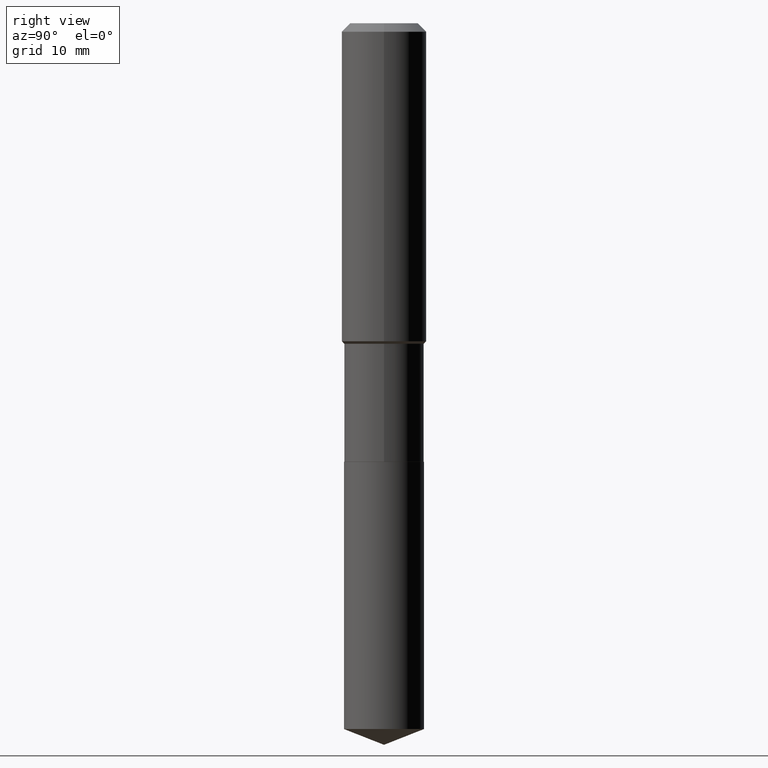
[diagram: clean part render]
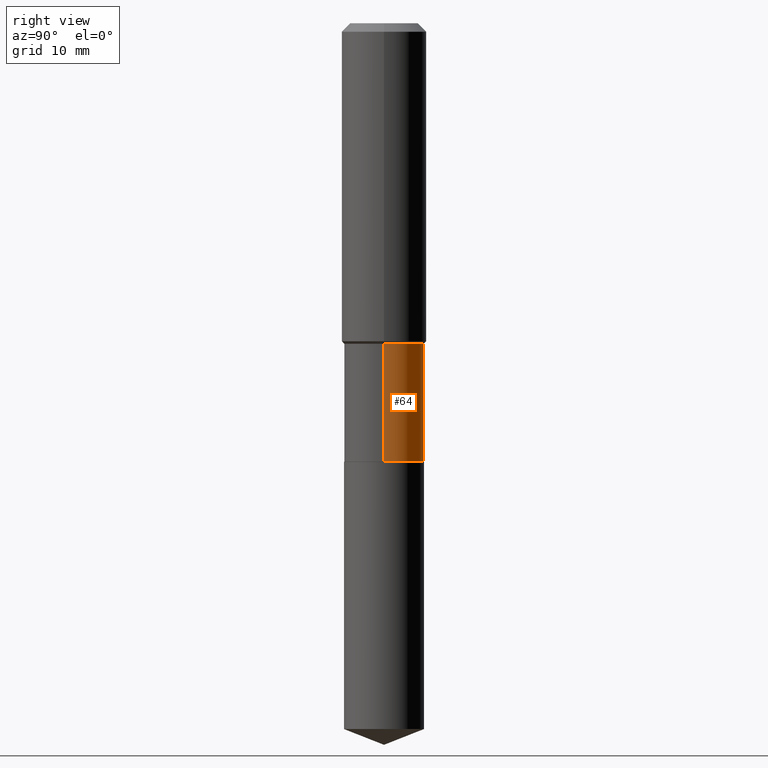
[diagram: same view with one face highlighted and labeled with its STEP entity id]
A machine part, right view. The second image highlights one B-rep face of the part: STEP entity #64.
In plain terms, the highlighted cylindrical surface (partial cylindrical patch) has radius 5.6502 mm, axis along (-0, 0, 1).
Its self-contained STEP definition (entity closure, byte-faithful):
#28 = VERTEX_POINT ( 'NONE', #339 ) ;
#32 = DIRECTION ( 'NONE',  ( 1.000000000000000000, -6.982962677686265922E-15, 0.000000000000000000 ) ) ;
#34 = ORIENTED_EDGE ( 'NONE', *, *, #416, .T. ) ;
#36 = CIRCLE ( 'NONE', #327, 0.2224499999999999256 ) ;
#64 = ADVANCED_FACE ( 'NONE', ( #479 ), #68, .T. ) ;
#68 = CYLINDRICAL_SURFACE ( 'NONE', #164, 0.2224499999999999811 ) ;
#76 = CARTESIAN_POINT ( 'NONE',  ( -0.2224500000000000088, -5.793406271938379830E-15, -2.440399999999999903 ) ) ;
#91 = EDGE_CURVE ( 'NONE', #419, #360, #421, .T. ) ;
#96 = ORIENTED_EDGE ( 'NONE', *, *, #91, .T. ) ;
#108 = CARTESIAN_POINT ( 'NONE',  ( 0.2224499999999999811, -1.553360047651309885E-15, 1.084705523775805705E-29 ) ) ;
#109 = VECTOR ( 'NONE', #261, 39.37007874015748143 ) ;
#131 = VERTEX_POINT ( 'NONE', #172 ) ;
#142 = DIRECTION ( 'NONE',  ( 1.000000000000000000, -6.982962677686266711E-15, 4.876176775795935232E-29 ) ) ;
#144 = DIRECTION ( 'NONE',  ( -2.445468806185136597E-29, 3.491481338843145583E-15, 1.000000000000000000 ) ) ;
#153 = DIRECTION ( 'NONE',  ( -2.445468806185136597E-29, 3.491481338843145583E-15, 1.000000000000000000 ) ) ;
#164 = AXIS2_PLACEMENT_3D ( 'NONE', #441, #144, #142 ) ;
#165 = CARTESIAN_POINT ( 'NONE',  ( -0.2224499999999999811, 1.580602315698342729E-15, -1.094217110827203649E-29 ) ) ;
#170 = EDGE_CURVE ( 'NONE', #419, #131, #296, .T. ) ;
#172 = CARTESIAN_POINT ( 'NONE',  ( 0.2224499999999999256, -7.780766163611943540E-15, -1.783600000000000074 ) ) ;
#191 = ORIENTED_EDGE ( 'NONE', *, *, #170, .F. ) ;
#243 = CARTESIAN_POINT ( 'NONE',  ( 0.2224500000000000088, -1.007397110696412214E-14, -2.440399999999999903 ) ) ;
#250 = EDGE_LOOP ( 'NONE', ( #96, #34, #433, #191 ) ) ;
#261 = DIRECTION ( 'NONE',  ( -2.445468806185136877E-29, 3.491481338843145188E-15, 1.000000000000000000 ) ) ;
#284 = DIRECTION ( 'NONE',  ( -2.445468806185136597E-29, 3.491481338843145583E-15, 1.000000000000000000 ) ) ;
#296 = LINE ( 'NONE', #108, #109 ) ;
#318 = VECTOR ( 'NONE', #384, 39.37007874015748143 ) ;
#327 = AXIS2_PLACEMENT_3D ( 'NONE', #373, #153, #32 ) ;
#335 = AXIS2_PLACEMENT_3D ( 'NONE', #473, #284, #396 ) ;
#339 = CARTESIAN_POINT ( 'NONE',  ( -0.2224499999999999256, -5.793406271938379830E-15, -1.783600000000000074 ) ) ;
#360 = VERTEX_POINT ( 'NONE', #76 ) ;
#365 = EDGE_CURVE ( 'NONE', #131, #28, #36, .T. ) ;
#373 = CARTESIAN_POINT ( 'NONE',  ( 4.361738162711809273E-29, -6.227406115960634444E-15, -1.783600000000000074 ) ) ;
#384 = DIRECTION ( 'NONE',  ( -2.445468806185136877E-29, 3.491481338843145188E-15, 1.000000000000000000 ) ) ;
#396 = DIRECTION ( 'NONE',  ( 1.000000000000000000, -6.982962677686262766E-15, 0.000000000000000000 ) ) ;
#415 = LINE ( 'NONE', #165, #318 ) ;
#416 = EDGE_CURVE ( 'NONE', #360, #28, #415, .T. ) ;
#419 = VERTEX_POINT ( 'NONE', #243 ) ;
#421 = CIRCLE ( 'NONE', #335, 0.2224500000000000088 ) ;
#433 = ORIENTED_EDGE ( 'NONE', *, *, #365, .F. ) ;
#441 = CARTESIAN_POINT ( 'NONE',  ( 0.000000000000000000, 0.000000000000000000, 0.000000000000000000 ) ) ;
#473 = CARTESIAN_POINT ( 'NONE',  ( 5.967922074614207358E-29, -8.520611059312812251E-15, -2.440399999999999903 ) ) ;
#479 = FACE_OUTER_BOUND ( 'NONE', #250, .T. ) ;